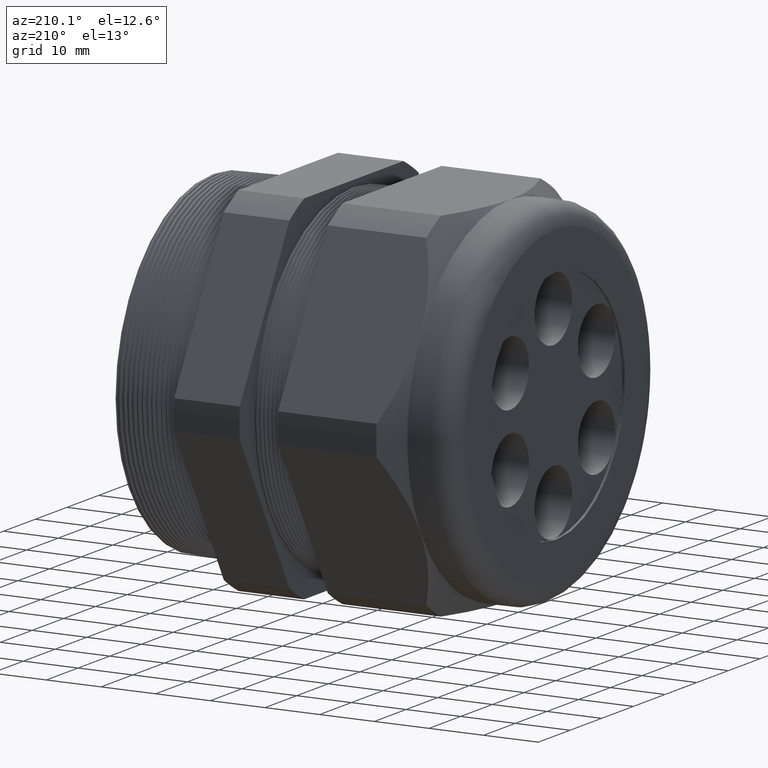
[diagram: clean part render]
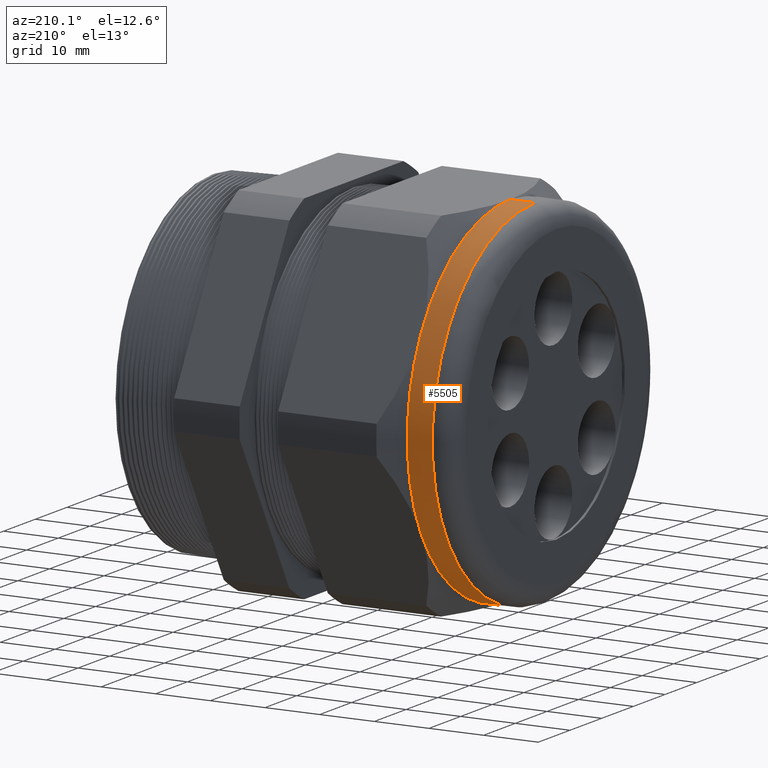
[diagram: same view with one face highlighted and labeled with its STEP entity id]
A machine part, auxiliary view. The second image highlights one B-rep face of the part: STEP entity #5505.
In plain terms, the highlighted cylindrical surface (partial cylindrical patch) has radius 32.512 mm, axis along (1, 0, 0).
Its self-contained STEP definition (entity closure, byte-faithful):
#4722 = CARTESIAN_POINT ( 'NONE',  ( -2.089999999999999400, 1.567547902908612300E-016, 1.280000000000000000 ) ) ;
#4723 = CARTESIAN_POINT ( 'NONE',  ( -2.089999999999999400, 0.0000000000000000000, -1.280000000000000000 ) ) ;
#4742 = CARTESIAN_POINT ( 'NONE',  ( -1.909291999999999500, 0.0000000000000000000, 1.280000000000000000 ) ) ;
#4759 = DIRECTION ( 'NONE',  ( 0.0000000000000000000, 0.0000000000000000000, -1.000000000000000000 ) ) ;
#4760 = DIRECTION ( 'NONE',  ( 1.000000000000000000, 0.0000000000000000000, 0.0000000000000000000 ) ) ;
#4761 = CARTESIAN_POINT ( 'NONE',  ( 0.0000000000000000000, 0.0000000000000000000, 0.0000000000000000000 ) ) ;
#4762 = AXIS2_PLACEMENT_3D ( 'NONE', #4761, #4760, #4759 ) ;
#4763 = CYLINDRICAL_SURFACE ( 'NONE', #4762, 1.280000000000000000 ) ;
#4765 = FACE_OUTER_BOUND ( 'NONE', #5503, .T. ) ;
#4766 = DIRECTION ( 'NONE',  ( 1.000000000000000000, 0.0000000000000000000, 0.0000000000000000000 ) ) ;
#4767 = VECTOR ( 'NONE', #4766, 39.37007874015748100 ) ;
#4768 = CARTESIAN_POINT ( 'NONE',  ( 0.0000000000000000000, 1.567547902908612300E-016, 1.280000000000000000 ) ) ;
#4773 = LINE ( 'NONE', #4768, #4767 ) ;
#4776 = DIRECTION ( 'NONE',  ( 0.0000000000000000000, 0.0000000000000000000, 1.000000000000000000 ) ) ;
#4777 = DIRECTION ( 'NONE',  ( 1.000000000000000000, 0.0000000000000000000, 0.0000000000000000000 ) ) ;
#4778 = CARTESIAN_POINT ( 'NONE',  ( -2.089999999999999400, 0.0000000000000000000, 0.0000000000000000000 ) ) ;
#4779 = AXIS2_PLACEMENT_3D ( 'NONE', #4778, #4777, #4776 ) ;
#4780 = CIRCLE ( 'NONE', #4779, 1.280000000000000000 ) ;
#4786 = DIRECTION ( 'NONE',  ( 0.0000000000000000000, 0.0000000000000000000, -1.000000000000000000 ) ) ;
#4787 = DIRECTION ( 'NONE',  ( 1.000000000000000000, 0.0000000000000000000, 0.0000000000000000000 ) ) ;
#4788 = CARTESIAN_POINT ( 'NONE',  ( -1.909291999999999500, 0.0000000000000000000, 0.0000000000000000000 ) ) ;
#4789 = AXIS2_PLACEMENT_3D ( 'NONE', #4788, #4787, #4786 ) ;
#4790 = CIRCLE ( 'NONE', #4789, 1.280000000000000000 ) ;
#4791 = CARTESIAN_POINT ( 'NONE',  ( -1.909291999999999500, 1.108512516844081900, 0.6400000000000005700 ) ) ;
#4792 = CARTESIAN_POINT ( 'NONE',  ( -1.909291999999999500, 1.108512516844082100, -0.6399999999999995700 ) ) ;
#4793 = DIRECTION ( 'NONE',  ( 1.000000000000000000, 0.0000000000000000000, 0.0000000000000000000 ) ) ;
#4794 = VECTOR ( 'NONE', #4793, 39.37007874015748100 ) ;
#4795 = CARTESIAN_POINT ( 'NONE',  ( 0.0000000000000000000, 0.0000000000000000000, -1.280000000000000000 ) ) ;
#4796 = LINE ( 'NONE', #4795, #4794 ) ;
#4797 = CARTESIAN_POINT ( 'NONE',  ( -1.909291999999999500, 0.0000000000000000000, -1.280000000000000000 ) ) ;
#4799 = DIRECTION ( 'NONE',  ( 0.0000000000000000000, 0.0000000000000000000, -1.000000000000000000 ) ) ;
#4800 = DIRECTION ( 'NONE',  ( 1.000000000000000000, 0.0000000000000000000, 0.0000000000000000000 ) ) ;
#4801 = AXIS2_PLACEMENT_3D ( 'NONE', #4807, #4800, #4799 ) ;
#4802 = CIRCLE ( 'NONE', #4801, 1.280000000000000000 ) ;
#4807 = CARTESIAN_POINT ( 'NONE',  ( -1.909291999999999500, 0.0000000000000000000, 0.0000000000000000000 ) ) ;
#4834 = DIRECTION ( 'NONE',  ( 0.0000000000000000000, 0.0000000000000000000, -1.000000000000000000 ) ) ;
#4835 = DIRECTION ( 'NONE',  ( 1.000000000000000000, 0.0000000000000000000, 0.0000000000000000000 ) ) ;
#4836 = AXIS2_PLACEMENT_3D ( 'NONE', #4843, #4835, #4834 ) ;
#4837 = CIRCLE ( 'NONE', #4836, 1.280000000000000000 ) ;
#4843 = CARTESIAN_POINT ( 'NONE',  ( -1.909291999999999500, 0.0000000000000000000, 0.0000000000000000000 ) ) ;
#5487 = VERTEX_POINT ( 'NONE', #4742 ) ;
#5495 = VERTEX_POINT ( 'NONE', #4723 ) ;
#5496 = VERTEX_POINT ( 'NONE', #4722 ) ;
#5500 = EDGE_CURVE ( 'NONE', #5495, #5496, #4780, .T. ) ;
#5502 = ORIENTED_EDGE ( 'NONE', *, *, #5500, .T. ) ;
#5503 = EDGE_LOOP ( 'NONE', ( #5502, #5506, #5534, #5525, #5522, #5523 ) ) ;
#5504 = EDGE_CURVE ( 'NONE', #5496, #5487, #4773, .T. ) ;
#5505 = ADVANCED_FACE ( 'NONE', ( #4765 ), #4763, .T. ) ;
#5506 = ORIENTED_EDGE ( 'NONE', *, *, #5504, .T. ) ;
#5518 = EDGE_CURVE ( 'NONE', #5520, #5524, #4802, .T. ) ;
#5520 = VERTEX_POINT ( 'NONE', #4797 ) ;
#5521 = EDGE_CURVE ( 'NONE', #5495, #5520, #4796, .T. ) ;
#5522 = ORIENTED_EDGE ( 'NONE', *, *, #5518, .F. ) ;
#5523 = ORIENTED_EDGE ( 'NONE', *, *, #5521, .F. ) ;
#5524 = VERTEX_POINT ( 'NONE', #4792 ) ;
#5525 = ORIENTED_EDGE ( 'NONE', *, *, #5527, .F. ) ;
#5526 = VERTEX_POINT ( 'NONE', #4791 ) ;
#5527 = EDGE_CURVE ( 'NONE', #5524, #5526, #4790, .T. ) ;
#5533 = EDGE_CURVE ( 'NONE', #5526, #5487, #4837, .T. ) ;
#5534 = ORIENTED_EDGE ( 'NONE', *, *, #5533, .F. ) ;